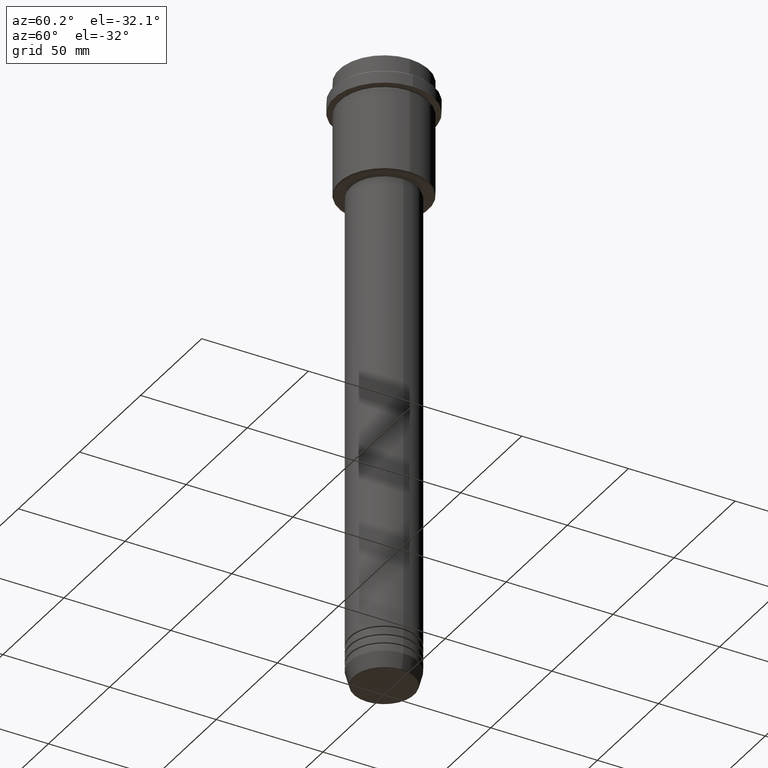
[diagram: clean part render]
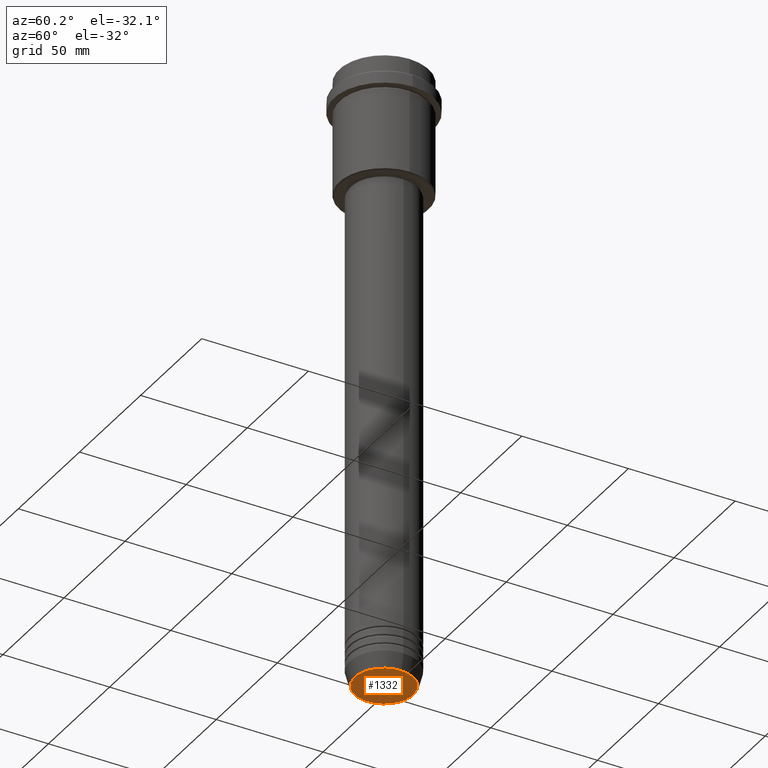
[diagram: same view with one face highlighted and labeled with its STEP entity id]
A machine part, auxiliary view. The second image highlights one B-rep face of the part: STEP entity #1332.
In plain terms, the highlighted planar face has unit normal (0, -0, 1).
Its self-contained STEP definition (entity closure, byte-faithful):
#3 = ORIENTED_EDGE ( 'NONE', *, *, #990, .T. ) ;
#20 = AXIS2_PLACEMENT_3D ( 'NONE', #562, #1077, #773 ) ;
#30 = EDGE_LOOP ( 'NONE', ( #1136, #3 ) ) ;
#70 = VERTEX_POINT ( 'NONE', #737 ) ;
#72 = FACE_OUTER_BOUND ( 'NONE', #30, .T. ) ;
#93 = EDGE_CURVE ( 'NONE', #815, #70, #826, .T. ) ;
#555 = DIRECTION ( 'NONE',  ( 0.000000000000000000, -0.000000000000000000, 1.000000000000000000 ) ) ;
#562 = CARTESIAN_POINT ( 'NONE',  ( 0.000000000000000000, 0.000000000000000000, -290.0000000000000000 ) ) ;
#607 = CARTESIAN_POINT ( 'NONE',  ( 13.74069215899265828, 0.000000000000000000, -290.0000000000000000 ) ) ;
#636 = CIRCLE ( 'NONE', #20, 13.74069215899265828 ) ;
#737 = CARTESIAN_POINT ( 'NONE',  ( -13.74069215899265828, 1.712322416342415986E-15, -290.0000000000000000 ) ) ;
#760 = PLANE ( 'NONE',  #1391 ) ;
#764 = DIRECTION ( 'NONE',  ( 1.000000000000000000, 0.000000000000000000, 0.000000000000000000 ) ) ;
#773 = DIRECTION ( 'NONE',  ( 1.000000000000000000, 0.000000000000000000, 0.000000000000000000 ) ) ;
#815 = VERTEX_POINT ( 'NONE', #607 ) ;
#826 = CIRCLE ( 'NONE', #1153, 13.74069215899265828 ) ;
#857 = CARTESIAN_POINT ( 'NONE',  ( 0.000000000000000000, 0.000000000000000000, -290.0000000000000000 ) ) ;
#877 = DIRECTION ( 'NONE',  ( 0.000000000000000000, 0.000000000000000000, -1.000000000000000000 ) ) ;
#990 = EDGE_CURVE ( 'NONE', #70, #815, #636, .T. ) ;
#1077 = DIRECTION ( 'NONE',  ( 0.000000000000000000, 0.000000000000000000, -1.000000000000000000 ) ) ;
#1136 = ORIENTED_EDGE ( 'NONE', *, *, #93, .T. ) ;
#1153 = AXIS2_PLACEMENT_3D ( 'NONE', #857, #877, #764 ) ;
#1189 = DIRECTION ( 'NONE',  ( 1.000000000000000000, 0.000000000000000000, 0.000000000000000000 ) ) ;
#1332 = ADVANCED_FACE ( 'NONE', ( #72 ), #760, .F. ) ;
#1391 = AXIS2_PLACEMENT_3D ( 'NONE', #1404, #555, #1189 ) ;
#1404 = CARTESIAN_POINT ( 'NONE',  ( 0.000000000000000000, 0.000000000000000000, -290.0000000000000000 ) ) ;